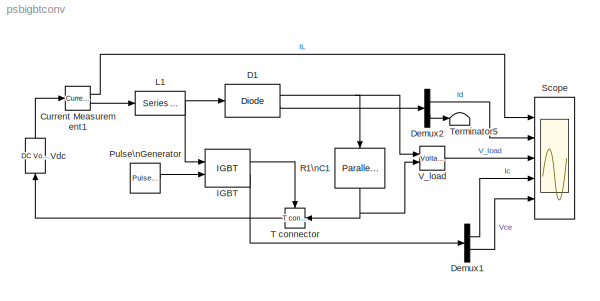
MODEL psbigbtconv
KIND model
CONFIG InitFcn = powericon('psbinitsys',bdroot);
BLOCK [Reference] Current Measurement1  REF=powerlib2/Measurements/Current Measurement
  PSBOutputType = 01
  PSBequivalent = 0
  Ports = [1, 2]
  SourceBlock = powerlib2/Measurements/Current Measurement
  SourceType = Current Measurement
  Tag = PoWeRsYsTeMmEaSuReMeNt
BLOCK [Reference] D1  REF=powerlib2/Power\nElectronics/Diode
  Cs = inf
  IC = 0
  Lon = 0.1e-6
  PSBOutputType = 10
  Ports = [1, 2]
  Ron = 0.05
  Rs = 1e5
  SourceBlock = powerlib2/Power\nElectronics/Diode
  SourceType = Diode
  Tag = PoWeRsYsTeMbLoCk
  Vf = 0.8
BLOCK [Demux] Demux1
  Outputs = 2
  Ports = [1, 2]
BLOCK [Demux] Demux2
  Outputs = 2
  Ports = [1, 2]
BLOCK [Reference] IGBT  REF=powerlib2/Power\nElectronics/IGBT
  Cs = inf
  IC = 0
  Lon = 1e-6
  PSBOutputType = 10
  Ports = [2, 2]
  Ron = 0.01
  Rs = 10000
  SourceBlock = powerlib2/Power\nElectronics/IGBT
  SourceType = IGBT
  Tag = PoWeRsYsTeMbLoCk
  Tf = 1e-6
  Tt = 1e-6
  Vf = 1
BLOCK [Reference] L1  REF=powerlib2/Elements/Series RLC Branch
  PSBOutputType = 1
  Ports = [1, 1]
  SourceBlock = powerlib2/Elements/Series RLC Branch
  SourceType = Series RLC Branch
  Tag = PoWeRsYsTeMbLoCk
  a = 0
  b = 400e-6
  c = inf
  mesure = None
BLOCK [Reference] Pulse\nGenerator  REF=simulink/Sources/Pulse\nGenerator
  Ports = [0, 1]
  SourceBlock = simulink/Sources/Pulse\nGenerator
  SourceType = Pulse Generator
  VectorParams1D = on
  amplitude = 1
  duty = 50
  period = 100e-6
  start = 0
BLOCK [Reference] R1\nC1  REF=powerlib2/Elements/Parallel RLC Branch
  PSBOutputType = 1
  Ports = [1, 1]
  SourceBlock = powerlib2/Elements/Parallel RLC Branch
  SourceType = Parallel RLC Branch
  Tag = PoWeRsYsTeMbLoCk
  a = 50
  b = inf
  c = 25e-06
  mesure = None
BLOCK [Scope] Scope
  DataFormat = StructureWithTime
  MaxDataPoints = 50000
  NumInputPorts = 5
  Ports = [5]
  SaveName = var
  SaveToWorkspace = on
  TimeRange = 0.02
  YMax = 70~70~400~70~700
  YMin = -10~0~0~0~0
  ZoomMode = xonly
BLOCK [Reference] T connector  REF=powerlib2/Connectors/T connector
  PSBOutputType = 1
  Ports = [1, 1, 1]
  SourceBlock = powerlib2/Connectors/T connector
  SourceType = Bus Bar
  Tag = PoWeRsYsTeMbLoCk
BLOCK [Terminator] Terminator5
BLOCK [Reference] V_load  REF=powerlib2/Measurements/Voltage Measurement
  PSBOutputType = 0
  PSBequivalent = 0
  Ports = [2, 1]
  SourceBlock = powerlib2/Measurements/Voltage Measurement
  SourceType = Voltage Measurement
  Tag = PoWeRsYsTeMmEaSuReMeNt
BLOCK [Reference] Vdc  REF=powerlib2/Electrical\nSources/DC Voltage Source
  Description = source block
  PSBOutputType = 1
  Ports = [1, 1]
  SourceBlock = powerlib2/Electrical\nSources/DC Voltage Source
  SourceType = DC Voltage Source
  Tag = PoWeRsYsTeMbLoCk
  V = 100
  mesure = None
LINE Current Measurement1:1 -> Scope:1
LINE Current Measurement1:2 -> L1:1
NET D1:1 -> R1\nC1:1, V_load:1
LINE D1:2 -> Demux2:1
LINE Demux1:1 -> Scope:4
LINE Demux1:2 -> Scope:5
LINE Demux2:1 -> Scope:2
LINE Demux2:2 -> Terminator5:1
LINE IGBT:1 -> T connector:enable
LINE IGBT:2 -> Demux1:1
NET L1:1 -> D1:1, IGBT:1
LINE Pulse\nGenerator:1 -> IGBT:2
NET R1\nC1:1 -> T connector:1, V_load:2
LINE T connector:1 -> Vdc:1
LINE V_load:1 -> Scope:3
LINE Vdc:1 -> Current Measurement1:1
note: NET lines group one-source signal fan-out (src -> all destinations, sorted); 1:1 wires keep LINE
